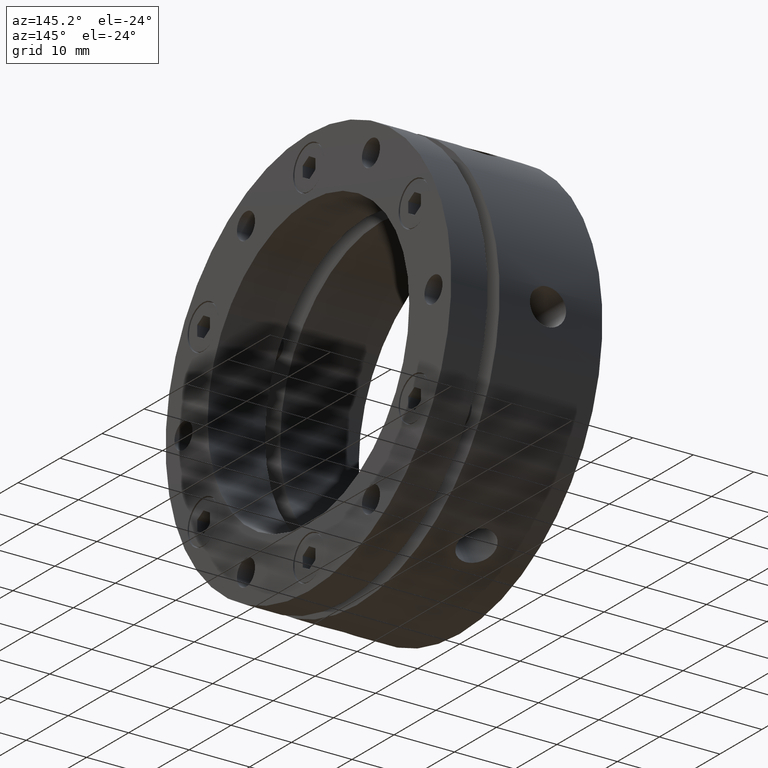
[diagram: clean part render]
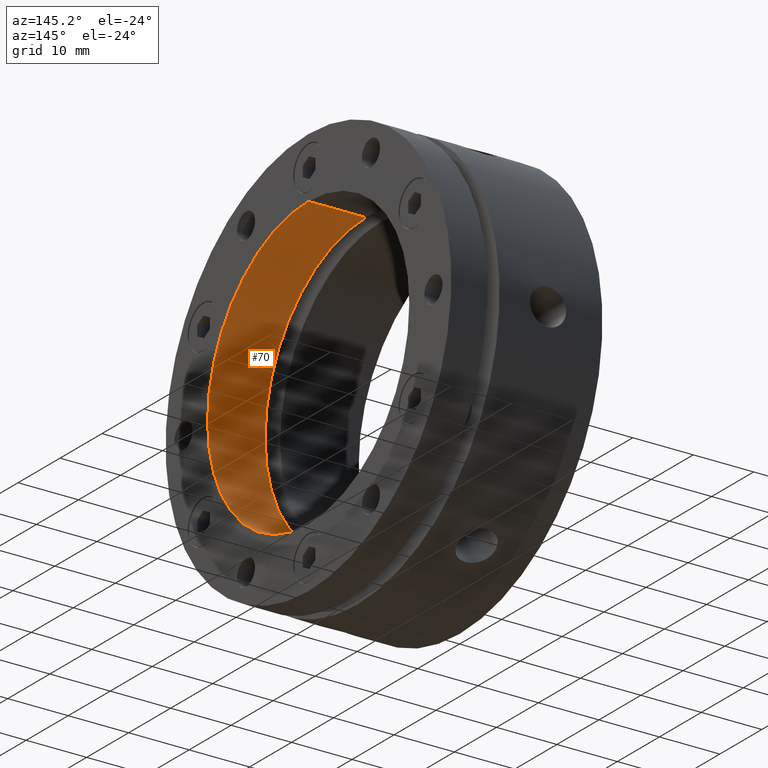
[diagram: same view with one face highlighted and labeled with its STEP entity id]
A machine part, auxiliary view. The second image highlights one B-rep face of the part: STEP entity #70.
In plain terms, the highlighted cylindrical surface (partial cylindrical patch) has radius 24 mm, axis along (1, 0, 0).
Its self-contained STEP definition (entity closure, byte-faithful):
#70 = ADVANCED_FACE ( 'NONE', ( #1809 ), #1818, .F. ) ;
#273 = DIRECTION ( 'NONE',  ( 0.0000000000000000000, 0.0000000000000000000, -1.000000000000000000 ) ) ;
#275 = DIRECTION ( 'NONE',  ( 1.000000000000000000, 0.0000000000000000000, 0.0000000000000000000 ) ) ;
#277 = CARTESIAN_POINT ( 'NONE',  ( 12.49999999999999300, 0.0000000000000000000, 0.0000000000000000000 ) ) ;
#726 = ORIENTED_EDGE ( 'NONE', *, *, #2918, .F. ) ;
#739 = ORIENTED_EDGE ( 'NONE', *, *, #2917, .T. ) ;
#745 = ORIENTED_EDGE ( 'NONE', *, *, #2916, .T. ) ;
#760 = ORIENTED_EDGE ( 'NONE', *, *, #2919, .F. ) ;
#1142 = EDGE_LOOP ( 'NONE', ( #745, #739, #726, #760 ) ) ;
#1662 = VERTEX_POINT ( 'NONE', #3646 ) ;
#1663 = VERTEX_POINT ( 'NONE', #3647 ) ;
#1667 = VERTEX_POINT ( 'NONE', #3651 ) ;
#1668 = VERTEX_POINT ( 'NONE', #3652 ) ;
#1809 = FACE_OUTER_BOUND ( 'NONE', #1142, .T. ) ;
#1818 = CYLINDRICAL_SURFACE ( 'NONE', #1959, 24.00000000000000400 ) ;
#1959 = AXIS2_PLACEMENT_3D ( 'NONE', #277, #275, #273 ) ;
#2673 = LINE ( 'NONE', #3789, #2681 ) ;
#2677 = CIRCLE ( 'NONE', #4044, 24.00000000000000400 ) ;
#2680 = CIRCLE ( 'NONE', #4045, 24.00000000000000400 ) ;
#2681 = VECTOR ( 'NONE', #3783, 1000.000000000000000 ) ;
#2682 = LINE ( 'NONE', #3788, #2684 ) ;
#2684 = VECTOR ( 'NONE', #3787, 1000.000000000000000 ) ;
#2916 = EDGE_CURVE ( 'NONE', #1662, #1663, #2677, .T. ) ;
#2917 = EDGE_CURVE ( 'NONE', #1663, #1668, #2673, .T. ) ;
#2918 = EDGE_CURVE ( 'NONE', #1667, #1668, #2680, .T. ) ;
#2919 = EDGE_CURVE ( 'NONE', #1662, #1667, #2682, .T. ) ;
#3646 = CARTESIAN_POINT ( 'NONE',  ( 15.50000000000000500, 0.0000000000000000000, -24.00000000000000400 ) ) ;
#3647 = CARTESIAN_POINT ( 'NONE',  ( 15.50000000000000500, 2.939152317953648300E-015, 24.00000000000000400 ) ) ;
#3651 = CARTESIAN_POINT ( 'NONE',  ( 24.99999999999999300, 0.0000000000000000000, -24.00000000000000400 ) ) ;
#3652 = CARTESIAN_POINT ( 'NONE',  ( 24.99999999999999300, 2.939152317953648300E-015, 24.00000000000000400 ) ) ;
#3783 = DIRECTION ( 'NONE',  ( 1.000000000000000000, 0.0000000000000000000, 0.0000000000000000000 ) ) ;
#3787 = DIRECTION ( 'NONE',  ( 1.000000000000000000, 0.0000000000000000000, 0.0000000000000000000 ) ) ;
#3788 = CARTESIAN_POINT ( 'NONE',  ( 12.49999999999999300, 0.0000000000000000000, -24.00000000000000400 ) ) ;
#3789 = CARTESIAN_POINT ( 'NONE',  ( 12.49999999999999300, 2.939152317953648300E-015, 24.00000000000000400 ) ) ;
#3790 = CARTESIAN_POINT ( 'NONE',  ( 15.50000000000000500, 0.0000000000000000000, 0.0000000000000000000 ) ) ;
#3791 = DIRECTION ( 'NONE',  ( -1.000000000000000000, -0.0000000000000000000, -0.0000000000000000000 ) ) ;
#3792 = DIRECTION ( 'NONE',  ( 0.0000000000000000000, 0.0000000000000000000, -1.000000000000000000 ) ) ;
#3795 = CARTESIAN_POINT ( 'NONE',  ( 24.99999999999999300, 0.0000000000000000000, 0.0000000000000000000 ) ) ;
#3796 = DIRECTION ( 'NONE',  ( -1.000000000000000000, -0.0000000000000000000, -0.0000000000000000000 ) ) ;
#3797 = DIRECTION ( 'NONE',  ( 0.0000000000000000000, 0.0000000000000000000, -1.000000000000000000 ) ) ;
#4044 = AXIS2_PLACEMENT_3D ( 'NONE', #3790, #3791, #3792 ) ;
#4045 = AXIS2_PLACEMENT_3D ( 'NONE', #3795, #3796, #3797 ) ;